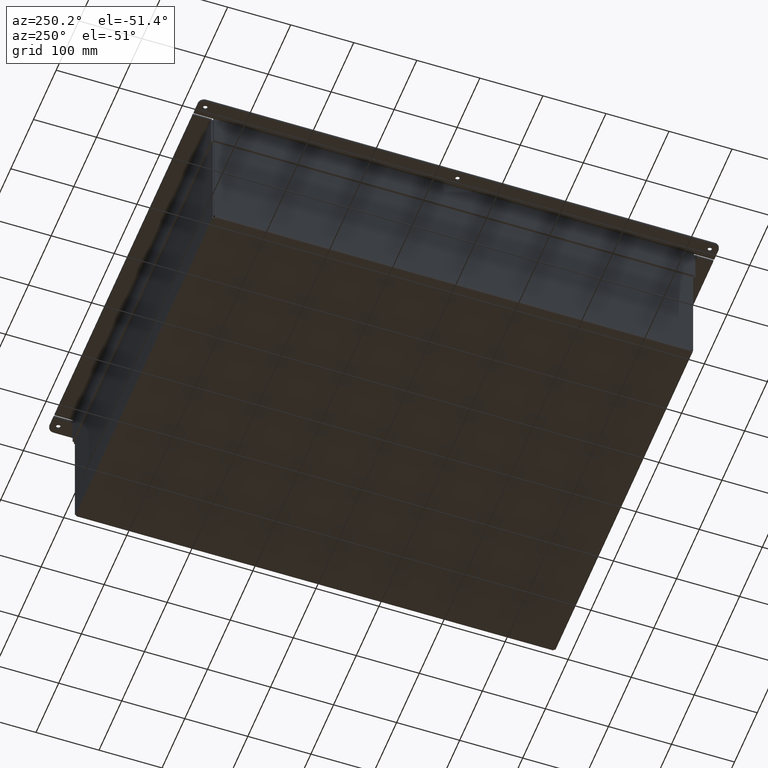
[diagram: clean part render]
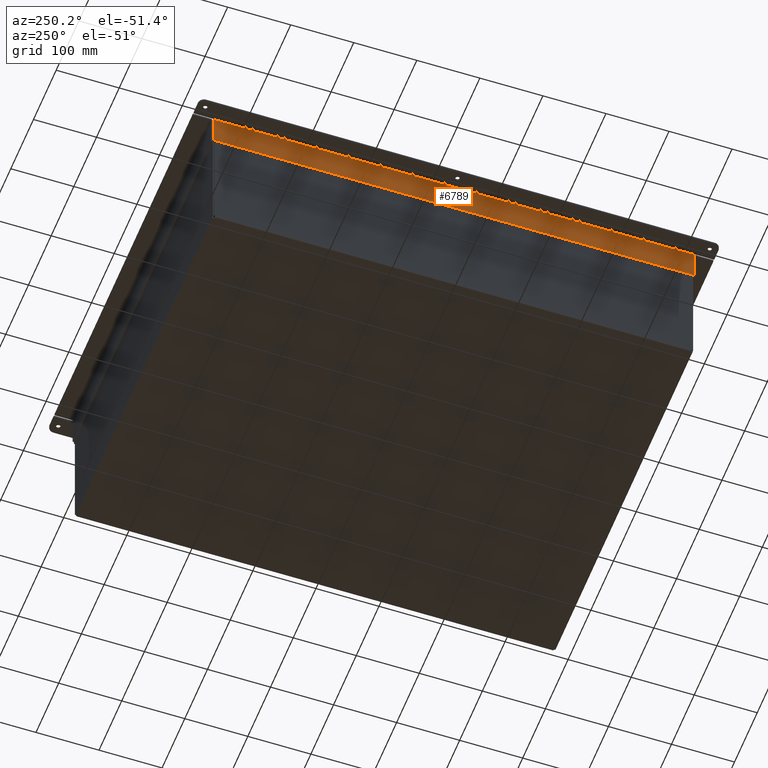
[diagram: same view with one face highlighted and labeled with its STEP entity id]
A machine part, auxiliary view. The second image highlights one B-rep face of the part: STEP entity #6789.
In plain terms, the highlighted planar face has unit normal (1, 0, -0).
Its self-contained STEP definition (entity closure, byte-faithful):
#633=PLANE($,#7323);
#1003=FACE_OUTER_BOUND($,#1447,.T.);
#1447=EDGE_LOOP($,(#5729,#5730,#5731,#5732));
#2091=LINE($,#12051,#2719);
#2094=LINE($,#12057,#2722);
#2095=LINE($,#12059,#2723);
#2096=LINE($,#12060,#2724);
#2719=VECTOR($,#8929,1.96875);
#2722=VECTOR($,#8934,30.);
#2723=VECTOR($,#8935,1.96874999999999);
#2724=VECTOR($,#8936,30.);
#3251=VERTEX_POINT($,#12048);
#3252=VERTEX_POINT($,#12050);
#3254=VERTEX_POINT($,#12056);
#3255=VERTEX_POINT($,#12058);
#4089=EDGE_CURVE($,#3252,#3251,#2091,.T.);
#4092=EDGE_CURVE($,#3251,#3254,#2094,.T.);
#4093=EDGE_CURVE($,#3255,#3254,#2095,.T.);
#4094=EDGE_CURVE($,#3255,#3252,#2096,.T.);
#5729=ORIENTED_EDGE($,*,*,#4092,.T.);
#5730=ORIENTED_EDGE($,*,*,#4093,.F.);
#5731=ORIENTED_EDGE($,*,*,#4094,.T.);
#5732=ORIENTED_EDGE($,*,*,#4089,.T.);
#6789=ADVANCED_FACE($,(#1003),#633,.F.);
#7323=AXIS2_PLACEMENT_3D($,#12055,#8932,#8933);
#8929=DIRECTION($,(-3.21373302499826E-032,1.85597549846483E-016,1.));
#8932=DIRECTION('center_axis',(-1.,-1.85605308240573E-016,6.209730483288E-017));
#8933=DIRECTION('ref_axis',(0.,-1.85597549846483E-016,1.));
#8934=DIRECTION($,(1.85605308240573E-016,-1.,-4.75064624478369E-037));
#8935=DIRECTION($,(-3.21373302499826E-032,1.85597549846483E-016,1.));
#8936=DIRECTION($,(-1.85597549846483E-016,1.,-1.87390762888478E-016));
#12048=CARTESIAN_POINT('',(-0.562500000000007,15.,-0.03125));
#12050=CARTESIAN_POINT('',(-0.562500000000007,15.,-2.));
#12051=CARTESIAN_POINT($,(-0.562500000000007,15.,0.146642684009522));
#12055=CARTESIAN_POINT('Origin',(-0.562500000000004,1.85151776269374E-016,
-0.971151828997617));
#12056=CARTESIAN_POINT('',(-0.562500000000001,-15.,-0.03125));
#12057=CARTESIAN_POINT($,(-0.562500000000004,8.96760248529607E-017,-0.03125));
#12058=CARTESIAN_POINT('',(-0.562500000000001,-15.,-1.99999999999999));
#12059=CARTESIAN_POINT($,(-0.562500000000001,-15.,0.146642684009528));
#12060=CARTESIAN_POINT($,(-0.562500000000001,-15.,-1.99999999999999));